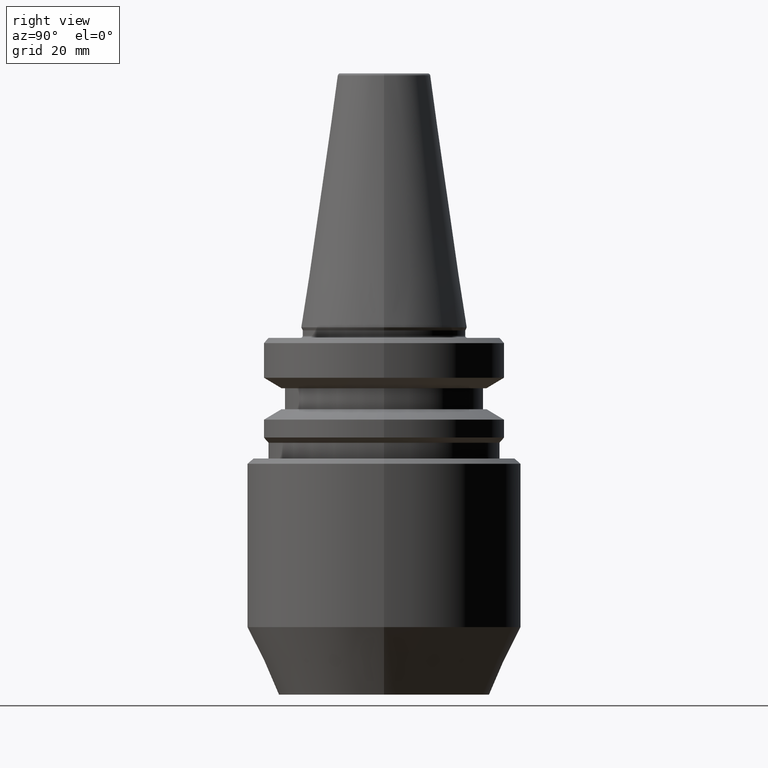
[diagram: clean part render]
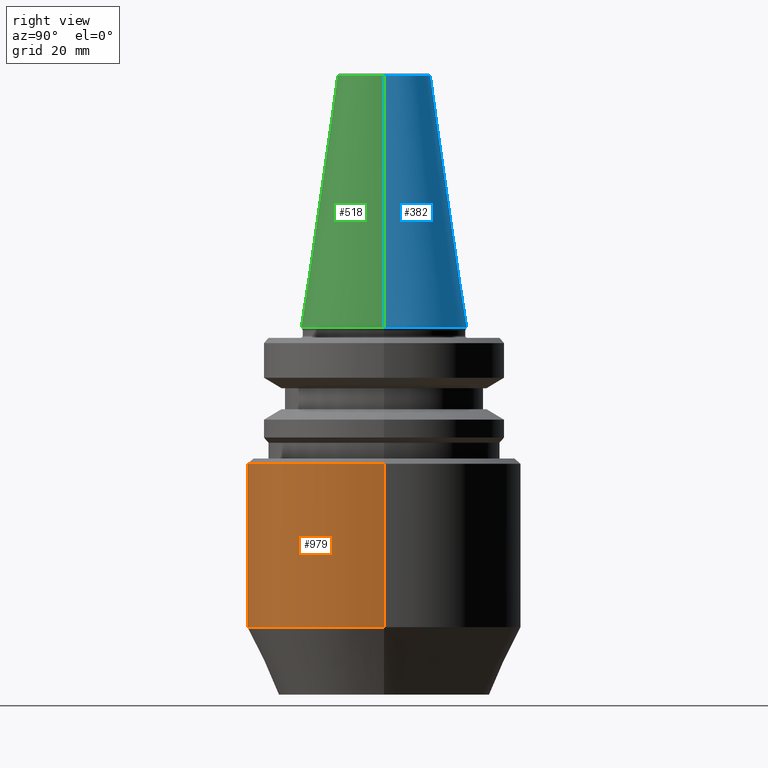
[diagram: same view with three faces highlighted in distinct colors, each labeled with its STEP entity id]
A machine part, right view with three faces highlighted in distinct colors.
Their STEP definitions:

[orange] entity #979 — the highlighted cylindrical surface (partial cylindrical patch) has radius 26 mm, axis along (-0, -0, 1).
#15 = CARTESIAN_POINT ( 'NONE',  ( 25.99999999999791500, 0.0000000000000000000, -25.99999999999991100 ) ) ;
#23 = FACE_OUTER_BOUND ( 'NONE', #623, .T. ) ;
#42 = VERTEX_POINT ( 'NONE', #846 ) ;
#50 = CIRCLE ( 'NONE', #867, 25.99999999999791500 ) ;
#80 = CARTESIAN_POINT ( 'NONE',  ( 25.99999999999791500, 0.0000000000000000000, 95.66143460902885900 ) ) ;
#88 = DIRECTION ( 'NONE',  ( 1.000000000000000000, 0.0000000000000000000, 0.0000000000000000000 ) ) ;
#110 = VERTEX_POINT ( 'NONE', #780 ) ;
#124 = AXIS2_PLACEMENT_3D ( 'NONE', #316, #625, #405 ) ;
#132 = VERTEX_POINT ( 'NONE', #843 ) ;
#146 = DIRECTION ( 'NONE',  ( -0.0000000000000000000, -0.0000000000000000000, 1.000000000000000000 ) ) ;
#148 = DIRECTION ( 'NONE',  ( -0.0000000000000000000, -0.0000000000000000000, 1.000000000000000000 ) ) ;
#220 = VECTOR ( 'NONE', #958, 1000.000000000000000 ) ;
#221 = EDGE_CURVE ( 'NONE', #42, #589, #512, .T. ) ;
#276 = VECTOR ( 'NONE', #807, 1000.000000000000000 ) ;
#316 = CARTESIAN_POINT ( 'NONE',  ( 0.0000000000000000000, 0.0000000000000000000, 95.66143460902885900 ) ) ;
#321 = DIRECTION ( 'NONE',  ( 1.000000000000000000, 0.0000000000000000000, 0.0000000000000000000 ) ) ;
#346 = ORIENTED_EDGE ( 'NONE', *, *, #419, .T. ) ;
#405 = DIRECTION ( 'NONE',  ( 1.000000000000000000, 0.0000000000000000000, 0.0000000000000000000 ) ) ;
#419 = EDGE_CURVE ( 'NONE', #132, #589, #911, .T. ) ;
#452 = ORIENTED_EDGE ( 'NONE', *, *, #492, .F. ) ;
#492 = EDGE_CURVE ( 'NONE', #110, #42, #853, .T. ) ;
#512 = CIRCLE ( 'NONE', #516, 25.99999999999791500 ) ;
#516 = AXIS2_PLACEMENT_3D ( 'NONE', #697, #146, #88 ) ;
#533 = CARTESIAN_POINT ( 'NONE',  ( 0.0000000000000000000, 0.0000000000000000000, -57.13295847694312400 ) ) ;
#543 = CARTESIAN_POINT ( 'NONE',  ( -25.99999999999791500, 3.184081677782863000E-015, 95.66143460902885900 ) ) ;
#589 = VERTEX_POINT ( 'NONE', #15 ) ;
#623 = EDGE_LOOP ( 'NONE', ( #452, #814, #346, #966 ) ) ;
#625 = DIRECTION ( 'NONE',  ( -0.0000000000000000000, -0.0000000000000000000, 1.000000000000000000 ) ) ;
#697 = CARTESIAN_POINT ( 'NONE',  ( 0.0000000000000000000, 0.0000000000000000000, -25.99999999999991100 ) ) ;
#780 = CARTESIAN_POINT ( 'NONE',  ( -25.99999999999791500, 3.184081677782863000E-015, -57.13295847694312400 ) ) ;
#807 = DIRECTION ( 'NONE',  ( -0.0000000000000000000, -0.0000000000000000000, 1.000000000000000000 ) ) ;
#814 = ORIENTED_EDGE ( 'NONE', *, *, #970, .T. ) ;
#843 = CARTESIAN_POINT ( 'NONE',  ( 25.99999999999791500, 0.0000000000000000000, -57.13295847694312400 ) ) ;
#846 = CARTESIAN_POINT ( 'NONE',  ( -25.99999999999791500, 3.184081677782863000E-015, -25.99999999999991100 ) ) ;
#853 = LINE ( 'NONE', #543, #220 ) ;
#867 = AXIS2_PLACEMENT_3D ( 'NONE', #533, #148, #321 ) ;
#911 = LINE ( 'NONE', #80, #276 ) ;
#958 = DIRECTION ( 'NONE',  ( -0.0000000000000000000, -0.0000000000000000000, 1.000000000000000000 ) ) ;
#966 = ORIENTED_EDGE ( 'NONE', *, *, #221, .F. ) ;
#970 = EDGE_CURVE ( 'NONE', #110, #132, #50, .T. ) ;
#979 = ADVANCED_FACE ( 'NONE', ( #23 ), #1047, .T. ) ;
#1047 = CYLINDRICAL_SURFACE ( 'NONE', #124, 25.99999999999791500 ) ;

[blue] entity #382 — the highlighted conical surface has half-angle 8.297 deg.
#105 = CARTESIAN_POINT ( 'NONE',  ( 0.0000000000000000000, 0.0000000000000000000, 47.97215411344135600 ) ) ;
#135 = ORIENTED_EDGE ( 'NONE', *, *, #602, .T. ) ;
#139 = AXIS2_PLACEMENT_3D ( 'NONE', #991, #476, #1019 ) ;
#166 = VERTEX_POINT ( 'NONE', #1025 ) ;
#193 = CARTESIAN_POINT ( 'NONE',  ( 0.0000000000000000000, 0.0000000000000000000, 0.0000000000000000000 ) ) ;
#201 = CIRCLE ( 'NONE', #450, 8.878994820583352900 ) ;
#225 = EDGE_LOOP ( 'NONE', ( #989, #337, #135, #664 ) ) ;
#249 = DIRECTION ( 'NONE',  ( -0.0000000000000000000, -0.0000000000000000000, 1.000000000000000000 ) ) ;
#293 = DIRECTION ( 'NONE',  ( 1.000000000000000000, 0.0000000000000000000, 0.0000000000000000000 ) ) ;
#312 = CARTESIAN_POINT ( 'NONE',  ( 8.878994820583352900, 1.515745026156835700E-015, 47.97215411344135600 ) ) ;
#337 = ORIENTED_EDGE ( 'NONE', *, *, #737, .T. ) ;
#382 = ADVANCED_FACE ( 'NONE', ( #986 ), #932, .T. ) ;
#409 = CARTESIAN_POINT ( 'NONE',  ( -15.87499999999930700, 1.944126793646338000E-015, 0.0000000000000000000 ) ) ;
#450 = AXIS2_PLACEMENT_3D ( 'NONE', #105, #588, #293 ) ;
#476 = DIRECTION ( 'NONE',  ( 0.0000000000000000000, 0.0000000000000000000, -1.000000000000000000 ) ) ;
#556 = DIRECTION ( 'NONE',  ( -0.1443082268835003100, 0.0000000000000000000, -0.9895327865481469100 ) ) ;
#588 = DIRECTION ( 'NONE',  ( -0.0000000000000000000, -0.0000000000000000000, 1.000000000000000000 ) ) ;
#598 = EDGE_CURVE ( 'NONE', #912, #166, #201, .T. ) ;
#602 = EDGE_CURVE ( 'NONE', #831, #1003, #786, .T. ) ;
#646 = CARTESIAN_POINT ( 'NONE',  ( 15.87499999999930700, 0.0000000000000000000, 0.0000000000000000000 ) ) ;
#649 = LINE ( 'NONE', #789, #834 ) ;
#664 = ORIENTED_EDGE ( 'NONE', *, *, #1007, .F. ) ;
#679 = VECTOR ( 'NONE', #962, 999.9999999999998900 ) ;
#737 = EDGE_CURVE ( 'NONE', #912, #831, #920, .T. ) ;
#740 = AXIS2_PLACEMENT_3D ( 'NONE', #193, #249, #841 ) ;
#778 = CARTESIAN_POINT ( 'NONE',  ( 15.87499999999930700, 1.944126793646338400E-015, 0.0000000000000000000 ) ) ;
#786 = CIRCLE ( 'NONE', #740, 15.87499999999930700 ) ;
#789 = CARTESIAN_POINT ( 'NONE',  ( -15.87499999999930700, 0.0000000000000000000, 0.0000000000000000000 ) ) ;
#831 = VERTEX_POINT ( 'NONE', #646 ) ;
#834 = VECTOR ( 'NONE', #556, 999.9999999999998900 ) ;
#841 = DIRECTION ( 'NONE',  ( 1.000000000000000000, 0.0000000000000000000, 0.0000000000000000000 ) ) ;
#912 = VERTEX_POINT ( 'NONE', #312 ) ;
#920 = LINE ( 'NONE', #778, #679 ) ;
#932 = CONICAL_SURFACE ( 'NONE', #139, 15.87499999999930700, 0.1448138461595524500 ) ;
#962 = DIRECTION ( 'NONE',  ( 0.1443082268835003100, 1.767266081435086600E-017, -0.9895327865481469100 ) ) ;
#986 = FACE_OUTER_BOUND ( 'NONE', #225, .T. ) ;
#989 = ORIENTED_EDGE ( 'NONE', *, *, #598, .F. ) ;
#991 = CARTESIAN_POINT ( 'NONE',  ( 0.0000000000000000000, 0.0000000000000000000, 0.0000000000000000000 ) ) ;
#1003 = VERTEX_POINT ( 'NONE', #409 ) ;
#1007 = EDGE_CURVE ( 'NONE', #166, #1003, #649, .T. ) ;
#1019 = DIRECTION ( 'NONE',  ( -1.000000000000000000, 0.0000000000000000000, 0.0000000000000000000 ) ) ;
#1025 = CARTESIAN_POINT ( 'NONE',  ( -8.878994820583352900, 0.0000000000000000000, 47.97215411344135600 ) ) ;

[green] entity #518 — the highlighted conical surface has half-angle 8.297 deg.
#48 = EDGE_LOOP ( 'NONE', ( #453, #295, #860, #72 ) ) ;
#60 = CIRCLE ( 'NONE', #111, 15.87499999999930700 ) ;
#72 = ORIENTED_EDGE ( 'NONE', *, *, #753, .T. ) ;
#76 = AXIS2_PLACEMENT_3D ( 'NONE', #84, #816, #435 ) ;
#84 = CARTESIAN_POINT ( 'NONE',  ( 0.0000000000000000000, 0.0000000000000000000, 0.0000000000000000000 ) ) ;
#111 = AXIS2_PLACEMENT_3D ( 'NONE', #715, #461, #243 ) ;
#166 = VERTEX_POINT ( 'NONE', #1025 ) ;
#243 = DIRECTION ( 'NONE',  ( 1.000000000000000000, 0.0000000000000000000, 0.0000000000000000000 ) ) ;
#290 = AXIS2_PLACEMENT_3D ( 'NONE', #550, #729, #434 ) ;
#295 = ORIENTED_EDGE ( 'NONE', *, *, #300, .F. ) ;
#300 = EDGE_CURVE ( 'NONE', #166, #912, #587, .T. ) ;
#312 = CARTESIAN_POINT ( 'NONE',  ( 8.878994820583352900, 1.515745026156835700E-015, 47.97215411344135600 ) ) ;
#404 = CONICAL_SURFACE ( 'NONE', #76, 15.87499999999930700, 0.1448138461595524500 ) ;
#409 = CARTESIAN_POINT ( 'NONE',  ( -15.87499999999930700, 1.944126793646338000E-015, 0.0000000000000000000 ) ) ;
#434 = DIRECTION ( 'NONE',  ( 1.000000000000000000, 0.0000000000000000000, 0.0000000000000000000 ) ) ;
#435 = DIRECTION ( 'NONE',  ( -1.000000000000000000, 0.0000000000000000000, 0.0000000000000000000 ) ) ;
#453 = ORIENTED_EDGE ( 'NONE', *, *, #737, .F. ) ;
#461 = DIRECTION ( 'NONE',  ( -0.0000000000000000000, -0.0000000000000000000, 1.000000000000000000 ) ) ;
#518 = ADVANCED_FACE ( 'NONE', ( #836 ), #404, .T. ) ;
#550 = CARTESIAN_POINT ( 'NONE',  ( 0.0000000000000000000, 0.0000000000000000000, 47.97215411344135600 ) ) ;
#556 = DIRECTION ( 'NONE',  ( -0.1443082268835003100, 0.0000000000000000000, -0.9895327865481469100 ) ) ;
#587 = CIRCLE ( 'NONE', #290, 8.878994820583352900 ) ;
#646 = CARTESIAN_POINT ( 'NONE',  ( 15.87499999999930700, 0.0000000000000000000, 0.0000000000000000000 ) ) ;
#649 = LINE ( 'NONE', #789, #834 ) ;
#679 = VECTOR ( 'NONE', #962, 999.9999999999998900 ) ;
#715 = CARTESIAN_POINT ( 'NONE',  ( 0.0000000000000000000, 0.0000000000000000000, 0.0000000000000000000 ) ) ;
#729 = DIRECTION ( 'NONE',  ( -0.0000000000000000000, -0.0000000000000000000, 1.000000000000000000 ) ) ;
#737 = EDGE_CURVE ( 'NONE', #912, #831, #920, .T. ) ;
#753 = EDGE_CURVE ( 'NONE', #1003, #831, #60, .T. ) ;
#778 = CARTESIAN_POINT ( 'NONE',  ( 15.87499999999930700, 1.944126793646338400E-015, 0.0000000000000000000 ) ) ;
#789 = CARTESIAN_POINT ( 'NONE',  ( -15.87499999999930700, 0.0000000000000000000, 0.0000000000000000000 ) ) ;
#816 = DIRECTION ( 'NONE',  ( 0.0000000000000000000, 0.0000000000000000000, -1.000000000000000000 ) ) ;
#831 = VERTEX_POINT ( 'NONE', #646 ) ;
#834 = VECTOR ( 'NONE', #556, 999.9999999999998900 ) ;
#836 = FACE_OUTER_BOUND ( 'NONE', #48, .T. ) ;
#860 = ORIENTED_EDGE ( 'NONE', *, *, #1007, .T. ) ;
#912 = VERTEX_POINT ( 'NONE', #312 ) ;
#920 = LINE ( 'NONE', #778, #679 ) ;
#962 = DIRECTION ( 'NONE',  ( 0.1443082268835003100, 1.767266081435086600E-017, -0.9895327865481469100 ) ) ;
#1003 = VERTEX_POINT ( 'NONE', #409 ) ;
#1007 = EDGE_CURVE ( 'NONE', #166, #1003, #649, .T. ) ;
#1025 = CARTESIAN_POINT ( 'NONE',  ( -8.878994820583352900, 0.0000000000000000000, 47.97215411344135600 ) ) ;